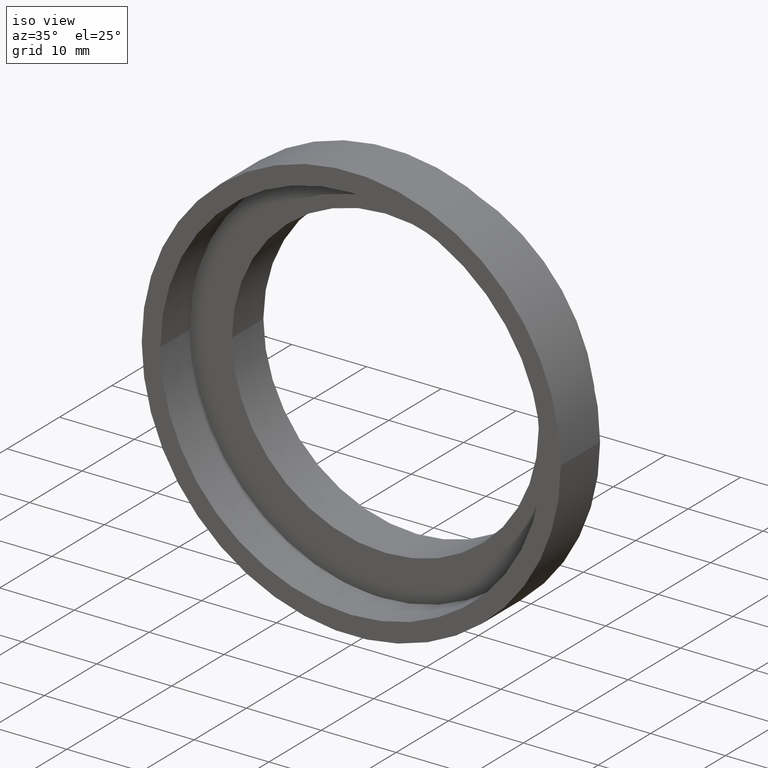
[diagram: clean part render]
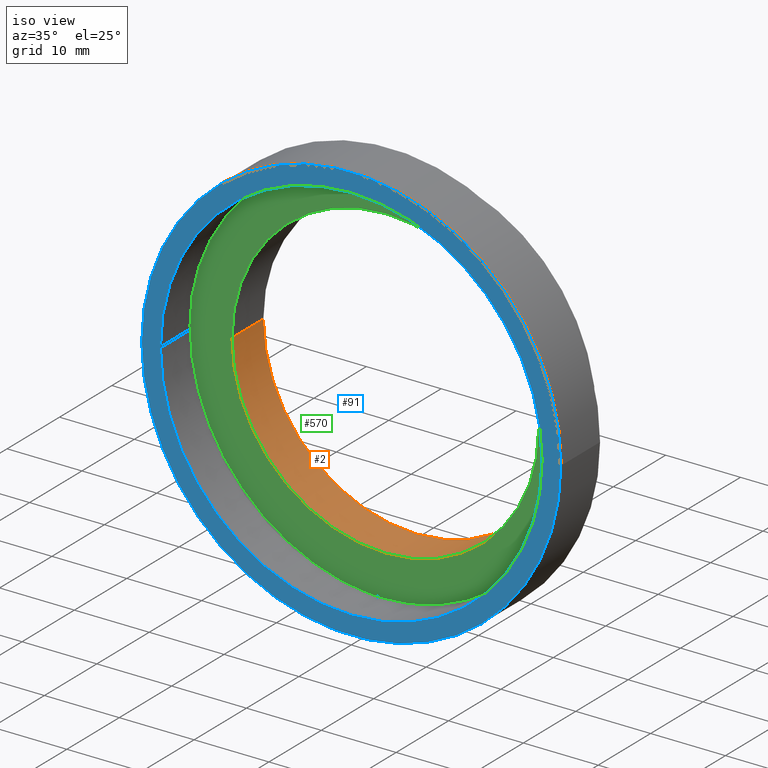
[diagram: same view with three faces highlighted in distinct colors, each labeled with its STEP entity id]
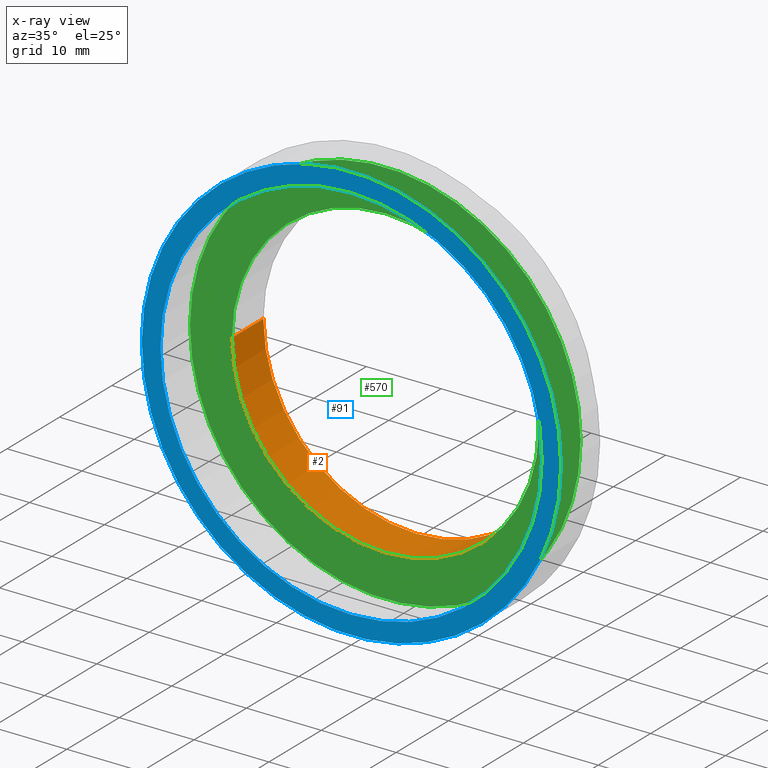
[diagram: x-ray of the same camera — body ghosted, the three highlighted faces saturated]
A machine part, iso view with three faces highlighted in distinct colors.
The next image is the same camera in x-ray (body ghosted, the three faces saturated) — at least one of them is partly hidden behind the body in this view.
Their STEP definitions:

[orange] entity #2 — the highlighted cylindrical surface (partial cylindrical patch) has radius 20.5 mm, axis along (-0, 1, -0).
#2 = ADVANCED_FACE ( 'NONE', ( #270 ), #376, .F. ) ;
#5 = ORIENTED_EDGE ( 'NONE', *, *, #396, .F. ) ;
#6 = VERTEX_POINT ( 'NONE', #135 ) ;
#70 = CARTESIAN_POINT ( 'NONE',  ( 20.50000000000000000, 16.88601823708208000, 2.510525938252074500E-015 ) ) ;
#76 = ORIENTED_EDGE ( 'NONE', *, *, #192, .T. ) ;
#80 = DIRECTION ( 'NONE',  ( -1.224646799147351000E-016, 1.000000000000000000, -0.0000000000000000000 ) ) ;
#123 = VERTEX_POINT ( 'NONE', #223 ) ;
#135 = CARTESIAN_POINT ( 'NONE',  ( 20.50000000000000000, 6.500000000000000000, 2.510525938252074500E-015 ) ) ;
#157 = CIRCLE ( 'NONE', #220, 20.50000000000000000 ) ;
#173 = VECTOR ( 'NONE', #218, 1000.000000000000000 ) ;
#192 = EDGE_CURVE ( 'NONE', #6, #123, #398, .T. ) ;
#196 = VECTOR ( 'NONE', #233, 1000.000000000000000 ) ;
#218 = DIRECTION ( 'NONE',  ( -1.224646799147351000E-016, 1.000000000000000000, -0.0000000000000000000 ) ) ;
#220 = AXIS2_PLACEMENT_3D ( 'NONE', #325, #452, #261 ) ;
#223 = CARTESIAN_POINT ( 'NONE',  ( 20.50000000000000000, 12.49999999999999800, 2.510525938252074500E-015 ) ) ;
#233 = DIRECTION ( 'NONE',  ( -1.224646799147351000E-016, 1.000000000000000000, -0.0000000000000000000 ) ) ;
#248 = CARTESIAN_POINT ( 'NONE',  ( -20.50000000000000000, 16.88601823708207300, 0.0000000000000000000 ) ) ;
#260 = DIRECTION ( 'NONE',  ( -1.000000000000000000, -8.462065736472229800E-017, 0.0000000000000000000 ) ) ;
#261 = DIRECTION ( 'NONE',  ( -1.000000000000000000, -1.269309860470834500E-016, 0.0000000000000000000 ) ) ;
#270 = FACE_OUTER_BOUND ( 'NONE', #610, .T. ) ;
#285 = EDGE_CURVE ( 'NONE', #123, #337, #427, .T. ) ;
#299 = CARTESIAN_POINT ( 'NONE',  ( -20.50000000000000000, 6.499999999999994700, 0.0000000000000000000 ) ) ;
#303 = ORIENTED_EDGE ( 'NONE', *, *, #389, .F. ) ;
#325 = CARTESIAN_POINT ( 'NONE',  ( 1.271920398992858000E-015, 6.499999999999997300, 0.0000000000000000000 ) ) ;
#328 = ORIENTED_EDGE ( 'NONE', *, *, #285, .T. ) ;
#337 = VERTEX_POINT ( 'NONE', #613 ) ;
#350 = CARTESIAN_POINT ( 'NONE',  ( 0.0000000000000000000, 16.88601823708207700, 0.0000000000000000000 ) ) ;
#376 = CYLINDRICAL_SURFACE ( 'NONE', #491, 20.50000000000000000 ) ;
#389 = EDGE_CURVE ( 'NONE', #6, #595, #157, .T. ) ;
#396 = EDGE_CURVE ( 'NONE', #595, #337, #422, .T. ) ;
#398 = LINE ( 'NONE', #70, #196 ) ;
#422 = LINE ( 'NONE', #248, #173 ) ;
#427 = CIRCLE ( 'NONE', #624, 20.50000000000000000 ) ;
#452 = DIRECTION ( 'NONE',  ( -1.224646799147351000E-016, 1.000000000000000000, -0.0000000000000000000 ) ) ;
#491 = AXIS2_PLACEMENT_3D ( 'NONE', #350, #80, #598 ) ;
#557 = CARTESIAN_POINT ( 'NONE',  ( 5.371323195044473300E-016, 12.49999999999999600, 0.0000000000000000000 ) ) ;
#595 = VERTEX_POINT ( 'NONE', #299 ) ;
#598 = DIRECTION ( 'NONE',  ( -1.000000000000000000, -1.692413147294446000E-016, 0.0000000000000000000 ) ) ;
#600 = DIRECTION ( 'NONE',  ( -1.224646799147351000E-016, 1.000000000000000000, -0.0000000000000000000 ) ) ;
#610 = EDGE_LOOP ( 'NONE', ( #303, #76, #328, #5 ) ) ;
#613 = CARTESIAN_POINT ( 'NONE',  ( -20.50000000000000000, 12.49999999999999500, 0.0000000000000000000 ) ) ;
#624 = AXIS2_PLACEMENT_3D ( 'NONE', #557, #600, #260 ) ;

[blue] entity #91 — the highlighted planar face has unit normal (-0, 1, 0).
#59 = VERTEX_POINT ( 'NONE', #226 ) ;
#71 = DIRECTION ( 'NONE',  ( -1.000000000000000000, -1.224646799147351200E-016, 0.0000000000000000000 ) ) ;
#91 = ADVANCED_FACE ( 'NONE', ( #382, #283 ), #216, .F. ) ;
#95 = AXIS2_PLACEMENT_3D ( 'NONE', #251, #603, #409 ) ;
#109 = CIRCLE ( 'NONE', #122, 25.50000000000000000 ) ;
#110 = EDGE_CURVE ( 'NONE', #336, #59, #281, .T. ) ;
#122 = AXIS2_PLACEMENT_3D ( 'NONE', #496, #145, #71 ) ;
#142 = VERTEX_POINT ( 'NONE', #212 ) ;
#144 = ORIENTED_EDGE ( 'NONE', *, *, #362, .F. ) ;
#145 = DIRECTION ( 'NONE',  ( -1.224646799147351000E-016, 1.000000000000000000, -0.0000000000000000000 ) ) ;
#182 = DIRECTION ( 'NONE',  ( -1.224646799147351000E-016, 1.000000000000000000, -0.0000000000000000000 ) ) ;
#190 = EDGE_CURVE ( 'NONE', #394, #142, #361, .T. ) ;
#208 = DIRECTION ( 'NONE',  ( -1.000000000000000000, -1.224646799147351000E-016, 0.0000000000000000000 ) ) ;
#212 = CARTESIAN_POINT ( 'NONE',  ( -27.99999999999999600, -6.898457989566196800E-015, 0.0000000000000000000 ) ) ;
#216 = PLANE ( 'NONE',  #225 ) ;
#225 = AXIS2_PLACEMENT_3D ( 'NONE', #497, #454, #208 ) ;
#226 = CARTESIAN_POINT ( 'NONE',  ( -25.49999999999999600, -6.592296289779359700E-015, 0.0000000000000000000 ) ) ;
#240 = DIRECTION ( 'NONE',  ( -1.224646799147351000E-016, 1.000000000000000000, -0.0000000000000000000 ) ) ;
#251 = CARTESIAN_POINT ( 'NONE',  ( 2.067940818438636500E-015, -3.469446951953614200E-015, 0.0000000000000000000 ) ) ;
#253 = AXIS2_PLACEMENT_3D ( 'NONE', #561, #240, #591 ) ;
#263 = CARTESIAN_POINT ( 'NONE',  ( 25.50000000000000400, -3.465976141278692900E-016, 3.122849337825751000E-015 ) ) ;
#273 = CARTESIAN_POINT ( 'NONE',  ( 2.067940818438636500E-015, -3.469446951953614200E-015, 0.0000000000000000000 ) ) ;
#276 = ORIENTED_EDGE ( 'NONE', *, *, #190, .F. ) ;
#281 = CIRCLE ( 'NONE', #253, 25.50000000000000000 ) ;
#282 = AXIS2_PLACEMENT_3D ( 'NONE', #273, #182, #463 ) ;
#283 = FACE_BOUND ( 'NONE', #387, .T. ) ;
#318 = CARTESIAN_POINT ( 'NONE',  ( 28.00000000000000400, -4.043591434103126100E-017, 3.429011037612589700E-015 ) ) ;
#336 = VERTEX_POINT ( 'NONE', #263 ) ;
#361 = CIRCLE ( 'NONE', #282, 28.00000000000000000 ) ;
#362 = EDGE_CURVE ( 'NONE', #142, #394, #549, .T. ) ;
#382 = FACE_OUTER_BOUND ( 'NONE', #435, .T. ) ;
#387 = EDGE_LOOP ( 'NONE', ( #562, #436 ) ) ;
#394 = VERTEX_POINT ( 'NONE', #318 ) ;
#409 = DIRECTION ( 'NONE',  ( -1.000000000000000000, -1.224646799147351000E-016, 0.0000000000000000000 ) ) ;
#425 = EDGE_CURVE ( 'NONE', #59, #336, #109, .T. ) ;
#435 = EDGE_LOOP ( 'NONE', ( #144, #276 ) ) ;
#436 = ORIENTED_EDGE ( 'NONE', *, *, #110, .T. ) ;
#454 = DIRECTION ( 'NONE',  ( -1.224646799147351000E-016, 1.000000000000000000, 0.0000000000000000000 ) ) ;
#463 = DIRECTION ( 'NONE',  ( -1.000000000000000000, -1.224646799147351000E-016, 0.0000000000000000000 ) ) ;
#496 = CARTESIAN_POINT ( 'NONE',  ( 2.067940818438636500E-015, -3.469446951953614200E-015, 0.0000000000000000000 ) ) ;
#497 = CARTESIAN_POINT ( 'NONE',  ( 28.00000000000000400, -9.549475979406660600E-018, 0.0000000000000000000 ) ) ;
#549 = CIRCLE ( 'NONE', #95, 28.00000000000000000 ) ;
#561 = CARTESIAN_POINT ( 'NONE',  ( 2.067940818438636500E-015, -3.469446951953614200E-015, 0.0000000000000000000 ) ) ;
#562 = ORIENTED_EDGE ( 'NONE', *, *, #425, .T. ) ;
#591 = DIRECTION ( 'NONE',  ( -1.000000000000000000, -1.224646799147351200E-016, 0.0000000000000000000 ) ) ;
#603 = DIRECTION ( 'NONE',  ( -1.224646799147351000E-016, 1.000000000000000000, -0.0000000000000000000 ) ) ;

[green] entity #570 — the highlighted planar face has unit normal (-0, 1, 0).
#6 = VERTEX_POINT ( 'NONE', #135 ) ;
#34 = AXIS2_PLACEMENT_3D ( 'NONE', #286, #553, #45 ) ;
#45 = DIRECTION ( 'NONE',  ( -1.000000000000000000, -1.329290019905599200E-016, 0.0000000000000000000 ) ) ;
#62 = VERTEX_POINT ( 'NONE', #295 ) ;
#79 = CARTESIAN_POINT ( 'NONE',  ( 1.271920398992858200E-015, 6.499999999999995600, 0.0000000000000000000 ) ) ;
#115 = DIRECTION ( 'NONE',  ( -1.000000000000000000, -1.329290019905599200E-016, 0.0000000000000000000 ) ) ;
#116 = AXIS2_PLACEMENT_3D ( 'NONE', #526, #490, #606 ) ;
#118 = FACE_BOUND ( 'NONE', #563, .T. ) ;
#135 = CARTESIAN_POINT ( 'NONE',  ( 20.50000000000000000, 6.500000000000000000, 2.510525938252074500E-015 ) ) ;
#157 = CIRCLE ( 'NONE', #220, 20.50000000000000000 ) ;
#176 = CIRCLE ( 'NONE', #432, 20.50000000000000000 ) ;
#177 = DIRECTION ( 'NONE',  ( -1.224646799147351000E-016, 1.000000000000000000, -0.0000000000000000000 ) ) ;
#180 = PLANE ( 'NONE',  #116 ) ;
#194 = FACE_OUTER_BOUND ( 'NONE', #238, .T. ) ;
#214 = ORIENTED_EDGE ( 'NONE', *, *, #485, .T. ) ;
#220 = AXIS2_PLACEMENT_3D ( 'NONE', #325, #452, #261 ) ;
#238 = EDGE_LOOP ( 'NONE', ( #554, #249 ) ) ;
#249 = ORIENTED_EDGE ( 'NONE', *, *, #583, .F. ) ;
#261 = DIRECTION ( 'NONE',  ( -1.000000000000000000, -1.269309860470834500E-016, 0.0000000000000000000 ) ) ;
#278 = AXIS2_PLACEMENT_3D ( 'NONE', #79, #334, #115 ) ;
#286 = CARTESIAN_POINT ( 'NONE',  ( 1.271920398992858200E-015, 6.499999999999995600, 0.0000000000000000000 ) ) ;
#295 = CARTESIAN_POINT ( 'NONE',  ( -26.10000000000000100, 6.499999999999992000, 0.0000000000000000000 ) ) ;
#298 = CIRCLE ( 'NONE', #34, 26.10000000000000100 ) ;
#299 = CARTESIAN_POINT ( 'NONE',  ( -20.50000000000000000, 6.499999999999994700, 0.0000000000000000000 ) ) ;
#325 = CARTESIAN_POINT ( 'NONE',  ( 1.271920398992858000E-015, 6.499999999999997300, 0.0000000000000000000 ) ) ;
#334 = DIRECTION ( 'NONE',  ( -1.224646799147351000E-016, 1.000000000000000000, -0.0000000000000000000 ) ) ;
#346 = DIRECTION ( 'NONE',  ( -1.000000000000000000, -1.269309860470834500E-016, 0.0000000000000000000 ) ) ;
#389 = EDGE_CURVE ( 'NONE', #6, #595, #157, .T. ) ;
#430 = EDGE_CURVE ( 'NONE', #62, #529, #503, .T. ) ;
#432 = AXIS2_PLACEMENT_3D ( 'NONE', #513, #177, #346 ) ;
#452 = DIRECTION ( 'NONE',  ( -1.224646799147351000E-016, 1.000000000000000000, -0.0000000000000000000 ) ) ;
#485 = EDGE_CURVE ( 'NONE', #595, #6, #176, .T. ) ;
#490 = DIRECTION ( 'NONE',  ( -1.224646799147351000E-016, 1.000000000000000000, 0.0000000000000000000 ) ) ;
#494 = CARTESIAN_POINT ( 'NONE',  ( 26.10000000000000100, 6.499999999999999100, 3.196328145774592300E-015 ) ) ;
#500 = ORIENTED_EDGE ( 'NONE', *, *, #389, .T. ) ;
#503 = CIRCLE ( 'NONE', #278, 26.10000000000000100 ) ;
#513 = CARTESIAN_POINT ( 'NONE',  ( 1.271920398992858000E-015, 6.499999999999997300, 0.0000000000000000000 ) ) ;
#526 = CARTESIAN_POINT ( 'NONE',  ( 20.50000000000000000, 6.499999999999999100, 0.0000000000000000000 ) ) ;
#529 = VERTEX_POINT ( 'NONE', #494 ) ;
#553 = DIRECTION ( 'NONE',  ( -1.224646799147351000E-016, 1.000000000000000000, -0.0000000000000000000 ) ) ;
#554 = ORIENTED_EDGE ( 'NONE', *, *, #430, .F. ) ;
#563 = EDGE_LOOP ( 'NONE', ( #214, #500 ) ) ;
#570 = ADVANCED_FACE ( 'NONE', ( #194, #118 ), #180, .F. ) ;
#583 = EDGE_CURVE ( 'NONE', #529, #62, #298, .T. ) ;
#595 = VERTEX_POINT ( 'NONE', #299 ) ;
#606 = DIRECTION ( 'NONE',  ( -1.000000000000000000, -1.224646799147351000E-016, 0.0000000000000000000 ) ) ;